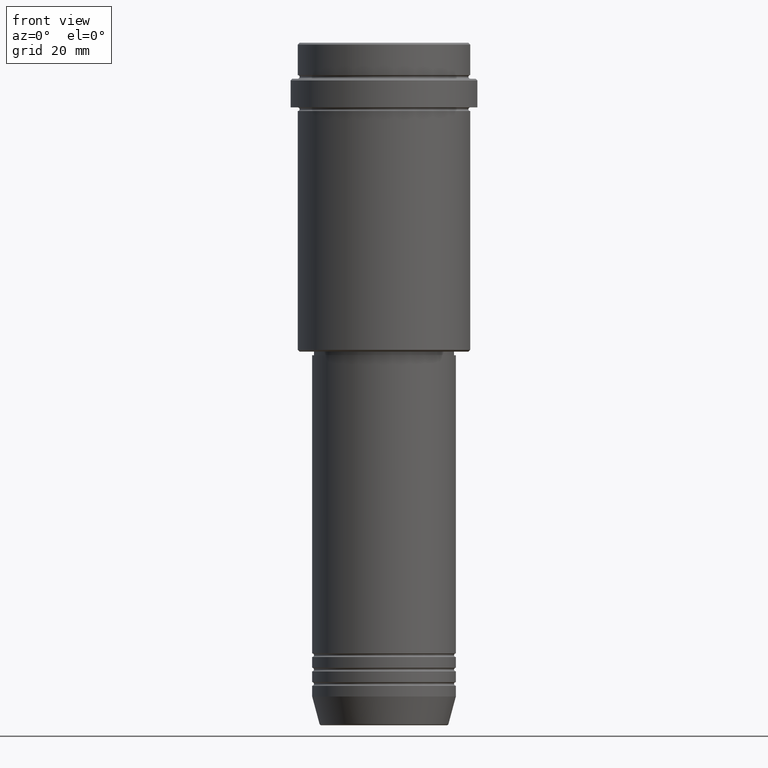
[diagram: clean part render]
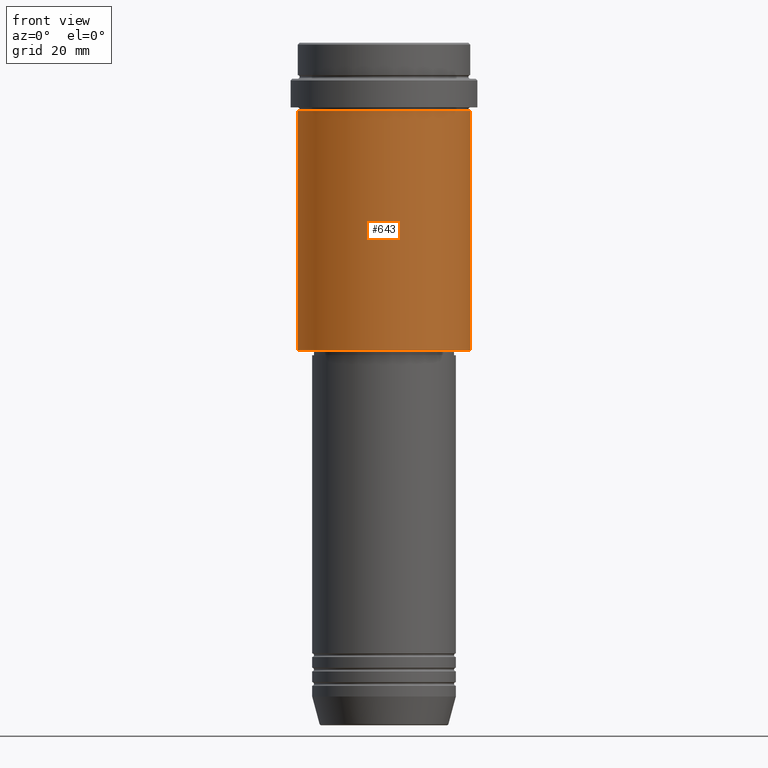
[diagram: same view with one face highlighted and labeled with its STEP entity id]
A machine part, front view. The second image highlights one B-rep face of the part: STEP entity #643.
In plain terms, the highlighted cylindrical surface (partial cylindrical patch) has radius 24 mm, axis along (-0, -0, 1).
Its self-contained STEP definition (entity closure, byte-faithful):
#82 = VERTEX_POINT ( 'NONE', #754 ) ;
#123 = DIRECTION ( 'NONE',  ( -0.000000000000000000, -0.000000000000000000, 1.000000000000000000 ) ) ;
#126 = DIRECTION ( 'NONE',  ( -0.000000000000000000, -0.000000000000000000, 1.000000000000000000 ) ) ;
#167 = LINE ( 'NONE', #574, #1305 ) ;
#179 = CARTESIAN_POINT ( 'NONE',  ( 23.99999999999998934, 0.000000000000000000, -85.49999999999998579 ) ) ;
#227 = EDGE_CURVE ( 'NONE', #789, #837, #848, .T. ) ;
#255 = CARTESIAN_POINT ( 'NONE',  ( -23.99999999999997868, 2.939152317953645528E-15, -19.00000000000000711 ) ) ;
#280 = ORIENTED_EDGE ( 'NONE', *, *, #725, .T. ) ;
#304 = CIRCLE ( 'NONE', #565, 23.99999999999998934 ) ;
#347 = AXIS2_PLACEMENT_3D ( 'NONE', #1408, #640, #535 ) ;
#428 = CYLINDRICAL_SURFACE ( 'NONE', #347, 23.99999999999998934 ) ;
#451 = EDGE_CURVE ( 'NONE', #82, #789, #1061, .T. ) ;
#457 = CARTESIAN_POINT ( 'NONE',  ( 0.000000000000000000, 0.000000000000000000, -85.49999999999998579 ) ) ;
#504 = ORIENTED_EDGE ( 'NONE', *, *, #227, .F. ) ;
#535 = DIRECTION ( 'NONE',  ( 1.000000000000000000, 0.000000000000000000, 0.000000000000000000 ) ) ;
#550 = FACE_OUTER_BOUND ( 'NONE', #1034, .T. ) ;
#565 = AXIS2_PLACEMENT_3D ( 'NONE', #457, #126, #593 ) ;
#574 = CARTESIAN_POINT ( 'NONE',  ( 23.99999999999998934, 0.000000000000000000, 0.000000000000000000 ) ) ;
#593 = DIRECTION ( 'NONE',  ( -1.000000000000000000, 0.000000000000000000, 0.000000000000000000 ) ) ;
#605 = ORIENTED_EDGE ( 'NONE', *, *, #451, .F. ) ;
#640 = DIRECTION ( 'NONE',  ( -0.000000000000000000, -0.000000000000000000, 1.000000000000000000 ) ) ;
#643 = ADVANCED_FACE ( 'NONE', ( #550 ), #428, .T. ) ;
#703 = CARTESIAN_POINT ( 'NONE',  ( -23.99999999999998934, 2.939152317953646711E-15, 0.000000000000000000 ) ) ;
#725 = EDGE_CURVE ( 'NONE', #82, #1407, #304, .T. ) ;
#754 = CARTESIAN_POINT ( 'NONE',  ( -23.99999999999998934, 2.939152317953646711E-15, -85.49999999999998579 ) ) ;
#789 = VERTEX_POINT ( 'NONE', #255 ) ;
#791 = CARTESIAN_POINT ( 'NONE',  ( 23.99999999999997868, 0.000000000000000000, -19.00000000000000711 ) ) ;
#837 = VERTEX_POINT ( 'NONE', #791 ) ;
#848 = CIRCLE ( 'NONE', #909, 23.99999999999997868 ) ;
#851 = DIRECTION ( 'NONE',  ( -0.000000000000000000, -0.000000000000000000, 1.000000000000000000 ) ) ;
#881 = DIRECTION ( 'NONE',  ( -0.000000000000000000, -0.000000000000000000, 1.000000000000000000 ) ) ;
#886 = CARTESIAN_POINT ( 'NONE',  ( 0.000000000000000000, 0.000000000000000000, -19.00000000000000711 ) ) ;
#908 = DIRECTION ( 'NONE',  ( 1.000000000000000000, 0.000000000000000000, 0.000000000000000000 ) ) ;
#909 = AXIS2_PLACEMENT_3D ( 'NONE', #886, #123, #908 ) ;
#943 = ORIENTED_EDGE ( 'NONE', *, *, #1039, .T. ) ;
#1034 = EDGE_LOOP ( 'NONE', ( #605, #280, #943, #504 ) ) ;
#1039 = EDGE_CURVE ( 'NONE', #1407, #837, #167, .T. ) ;
#1061 = LINE ( 'NONE', #703, #1161 ) ;
#1161 = VECTOR ( 'NONE', #851, 1000.000000000000000 ) ;
#1305 = VECTOR ( 'NONE', #881, 1000.000000000000000 ) ;
#1407 = VERTEX_POINT ( 'NONE', #179 ) ;
#1408 = CARTESIAN_POINT ( 'NONE',  ( 0.000000000000000000, 0.000000000000000000, 0.000000000000000000 ) ) ;